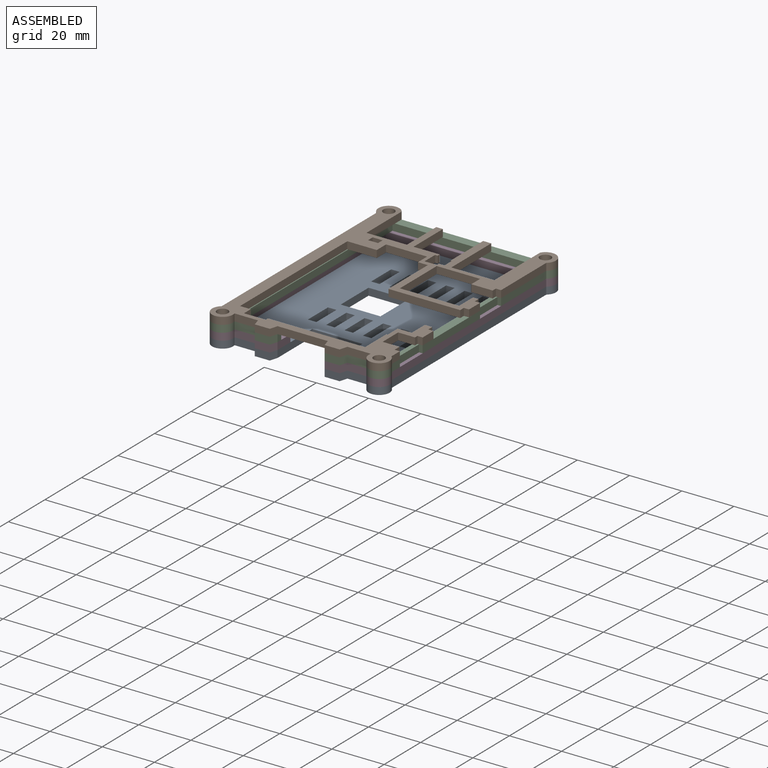
[diagram: assembled view]
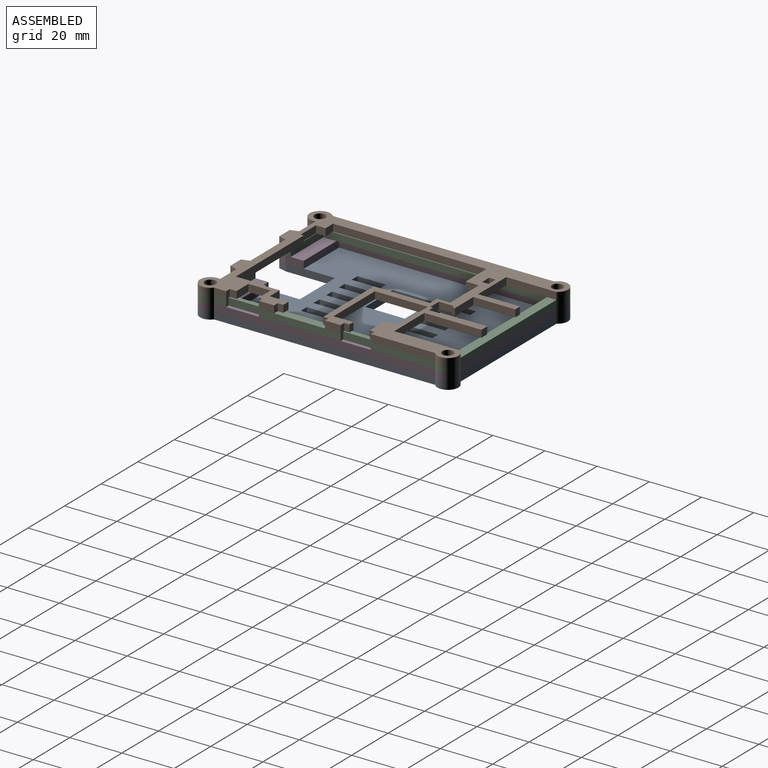
[diagram: assembled view, second angle]
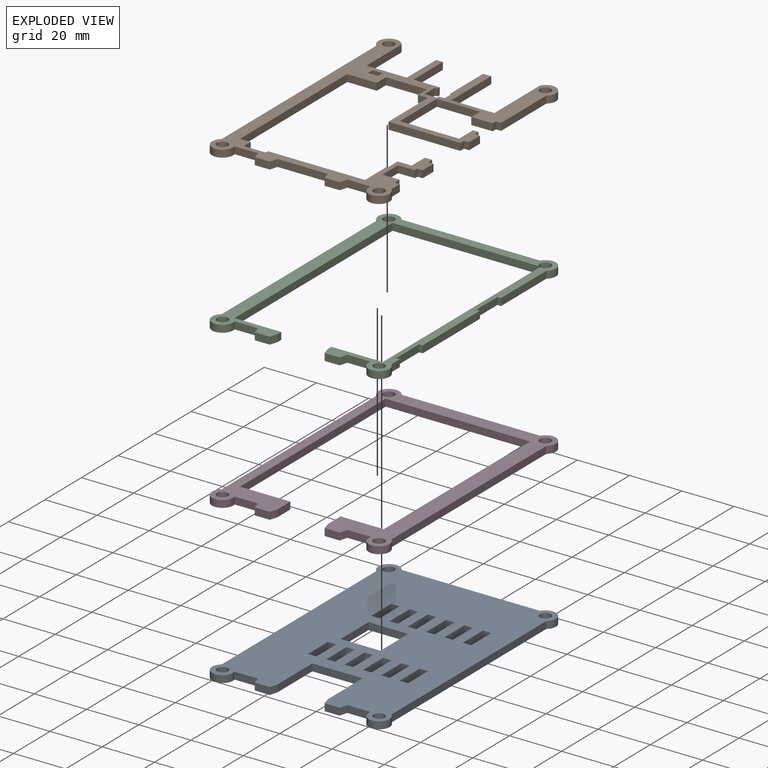
[diagram: exploded view]
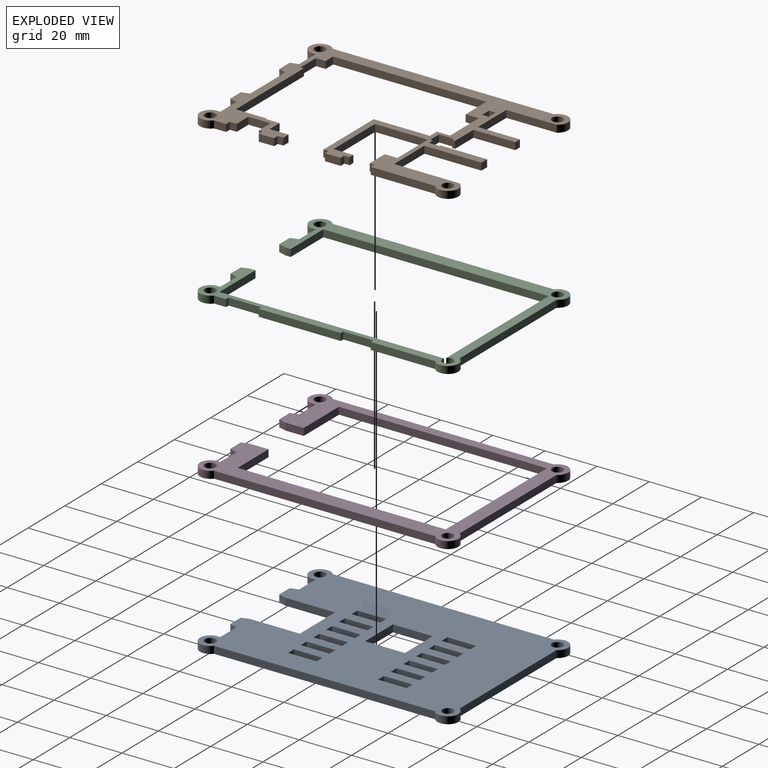
[diagram: exploded view, second angle]
ASSEMBLY  parts=4 mates=6
PART A: 76 faces, bbox 68x99x2.8 mm
  f0: plane 99x68mm, normal (0,0,1), area 5036.9mm2, adj f2,f3,f4,f5,f6,f7,f8,f9
  f1: plane 99x68mm, normal (0,0,-1), area 5036.9mm2, adj f2,f3,f4,f5,f6,f7,f8,f9
  f2: plane 53.07x2.75mm, normal (0,1,0), area 145.9mm2, adj f0,f1,f3,f20
  f3: cylinder r=4mm len=7.46mm, axis (0,0,-1), area 38.7mm2, adj f0,f1,f2,f4
  f4: plane 84.76x2.75mm, normal (-1,0,0), area 233.1mm2, adj f0,f1,f3,f5
  f5: cylinder r=4mm len=8mm, axis (0,0,-1), area 47.2mm2, adj f0,f1,f4,f6
  f6: plane 9x2.75mm, normal (0,-1,0), area 24.8mm2, adj f0,f1,f5,f7
  f7: plane 3x2.75mm, normal (-0.96,-0.28,0), area 8.6mm2, adj f0,f1,f6,f8
  f8: plane 5.75x2.75mm, normal (0,-1,0), area 15.8mm2, adj f0,f1,f7,f9
  f9: plane 3x2.75mm, normal (0.96,-0.28,0), area 8.6mm2, adj f0,f1,f8,f73
  f10: plane 3x2.75mm, normal (-0.96,-0.28,0), area 8.6mm2, adj f0,f1,f11,f74
  f11: plane 5.75x2.75mm, normal (0,-1,0), area 15.8mm2, adj f0,f1,f10,f12
  f12: plane 3x2.75mm, normal (0.96,-0.28,0), area 8.6mm2, adj f0,f1,f11,f13
  f13: plane 9x2.75mm, normal (0,-1,0), area 24.8mm2, adj f0,f1,f12,f14
  f14: cylinder r=4mm len=8mm, axis (0,0,-1), area 47.2mm2, adj f0,f1,f13,f15
  f15: plane 84.76x2.75mm, normal (1,0,0), area 233.1mm2, adj f0,f1,f14,f20
  f16: cylinder r=2.12mm len=4.25mm, axis (0,0,-1), area 36.7mm2, adj f0,f1
  f17: cylinder r=2.12mm len=4.25mm, axis (0,0,-1), area 36.7mm2, adj f0,f1
  f18: cylinder r=2.12mm len=4.25mm, axis (0,0,-1), area 36.7mm2, adj f0,f1
  f19: cylinder r=2.12mm len=4.25mm, axis (0,0,-1), area 36.7mm2, adj f0,f1
  f20: cylinder r=4mm len=7.46mm, axis (0,0,-1), area 38.7mm2, adj f0,f1,f2,f15
  f21: plane 11x2.75mm, normal (-1,0,0), area 30.2mm2, adj f0,f1,f22,f24
  f22: plane 3.25x2.75mm, normal (0,-1,0), area 8.9mm2, adj f0,f1,f21,f23
  f23: plane 11x2.75mm, normal (1,0,0), area 30.2mm2, adj f0,f1,f22,f24
  f24: plane 3.25x2.75mm, normal (0,1,0), area 8.9mm2, adj f0,f1,f21,f23
  f25: plane 11x2.75mm, normal (-1,0,0), area 30.2mm2, adj f0,f1,f26,f28
  f26: plane 3.25x2.75mm, normal (0,-1,0), area 8.9mm2, adj f0,f1,f25,f27
  f27: plane 11x2.75mm, normal (1,0,0), area 30.2mm2, adj f0,f1,f26,f28
  f28: plane 3.25x2.75mm, normal (0,1,0), area 8.9mm2, adj f0,f1,f25,f27
  f29: plane 11x2.75mm, normal (-1,0,0), area 30.2mm2, adj f0,f1,f30,f32
  f30: plane 3.25x2.75mm, normal (0,-1,0), area 8.9mm2, adj f0,f1,f29,f31
  f31: plane 11x2.75mm, normal (1,0,0), area 30.2mm2, adj f0,f1,f30,f32
  f32: plane 3.25x2.75mm, normal (0,1,0), area 8.9mm2, adj f0,f1,f29,f31
  f33: plane 11x2.75mm, normal (-1,0,0), area 30.2mm2, adj f0,f1,f34,f36
  f34: plane 3.25x2.75mm, normal (0,-1,0), area 8.9mm2, adj f0,f1,f33,f35
  f35: plane 11x2.75mm, normal (1,0,0), area 30.2mm2, adj f0,f1,f34,f36
  f36: plane 3.25x2.75mm, normal (0,1,0), area 8.9mm2, adj f0,f1,f33,f35
  f37: plane 15.25x2.75mm, normal (1,0,0), area 41.9mm2, adj f0,f1,f38,f39
  f38: plane 15.25x2.75mm, normal (0,-1,0), area 41.9mm2, adj f0,f1,f37,f40
  f39: plane 15.25x2.75mm, normal (0,1,0), area 41.9mm2, adj f0,f1,f37,f40
  f40: plane 15.25x2.75mm, normal (-1,0,0), area 41.9mm2, adj f0,f1,f38,f39
  f41: plane 11x2.75mm, normal (1,0,0), area 30.2mm2, adj f0,f1,f42,f43
  f42: plane 3.25x2.75mm, normal (0,-1,0), area 8.9mm2, adj f0,f1,f41,f44
  f43: plane 3.25x2.75mm, normal (0,1,0), area 8.9mm2, adj f0,f1,f41,f44
  f44: plane 11x2.75mm, normal (-1,0,0), area 30.2mm2, adj f0,f1,f42,f43
  f45: plane 11x2.75mm, normal (-1,0,0), area 30.2mm2, adj f0,f1,f46,f48
  f46: plane 3.25x2.75mm, normal (0,-1,0), area 8.9mm2, adj f0,f1,f45,f47
  f47: plane 11x2.75mm, normal (1,0,0), area 30.2mm2, adj f0,f1,f46,f48
  f48: plane 3.25x2.75mm, normal (0,1,0), area 8.9mm2, adj f0,f1,f45,f47
  f49: plane 11x2.75mm, normal (-1,0,0), area 30.2mm2, adj f0,f1,f50,f52
  f50: plane 3.25x2.75mm, normal (0,-1,0), area 8.9mm2, adj f0,f1,f49,f51
  f51: plane 11x2.75mm, normal (1,0,0), area 30.2mm2, adj f0,f1,f50,f52
  f52: plane 3.25x2.75mm, normal (0,1,0), area 8.9mm2, adj f0,f1,f49,f51
  f53: plane 11x2.75mm, normal (-1,0,0), area 30.2mm2, adj f0,f1,f54,f56
  f54: plane 3.25x2.75mm, normal (0,-1,0), area 8.9mm2, adj f0,f1,f53,f55
  f55: plane 11x2.75mm, normal (1,0,0), area 30.2mm2, adj f0,f1,f54,f56
  f56: plane 3.25x2.75mm, normal (0,1,0), area 8.9mm2, adj f0,f1,f53,f55
  f57: plane 11x2.75mm, normal (-1,0,0), area 30.2mm2, adj f0,f1,f58,f60
  f58: plane 3.25x2.75mm, normal (0,-1,0), area 8.9mm2, adj f0,f1,f57,f59
  f59: plane 11x2.75mm, normal (1,0,0), area 30.2mm2, adj f0,f1,f58,f60
  f60: plane 3.25x2.75mm, normal (0,1,0), area 8.9mm2, adj f0,f1,f57,f59
  f61: plane 11x2.75mm, normal (-1,0,0), area 30.2mm2, adj f0,f1,f62,f64
  f62: plane 3.25x2.75mm, normal (0,-1,0), area 8.9mm2, adj f0,f1,f61,f63
  f63: plane 11x2.75mm, normal (1,0,0), area 30.2mm2, adj f0,f1,f62,f64
  f64: plane 3.25x2.75mm, normal (0,1,0), area 8.9mm2, adj f0,f1,f61,f63
  f65: plane 11x2.75mm, normal (-1,0,0), area 30.2mm2, adj f0,f1,f66,f68
  f66: plane 3.25x2.75mm, normal (0,-1,0), area 8.9mm2, adj f0,f1,f65,f67
  f67: plane 11x2.75mm, normal (1,0,0), area 30.2mm2, adj f0,f1,f66,f68
  f68: plane 3.25x2.75mm, normal (0,1,0), area 8.9mm2, adj f0,f1,f65,f67
  f69: plane 11x2.75mm, normal (-1,0,0), area 30.2mm2, adj f0,f1,f70,f72
  f70: plane 3.25x2.75mm, normal (0,-1,0), area 8.9mm2, adj f0,f1,f69,f71
  f71: plane 11x2.75mm, normal (1,0,0), area 30.2mm2, adj f0,f1,f70,f72
  f72: plane 3.25x2.75mm, normal (0,1,0), area 8.9mm2, adj f0,f1,f69,f71
  f73: plane 19x2.75mm, normal (1,0,0), area 52.2mm2, adj f0,f1,f9,f75
  f74: plane 19x2.75mm, normal (-1,0,0), area 52.2mm2, adj f0,f1,f10,f75
  f75: plane 19.25x2.75mm, normal (0,-1,0), area 52.9mm2, adj f0,f1,f73,f74
PART B: 88 faces, bbox 68x99x2.8 mm
  f0: plane 5.9x2.75mm, normal (1,0,0), area 16.2mm2, adj f3,f4,f58,f85
  f1: plane 4.63x2.75mm, normal (1,0,0), area 12.7mm2, adj f3,f4,f17,f64
  f2: plane 6x2.75mm, normal (1,0,0), area 16.5mm2, adj f3,f4,f34,f65
  f3: plane 99x68mm, normal (0,0,1), area 1509.3mm2, adj f0,f1,f2,f5,f6,f7,f8,f9
  f4: plane 99x68mm, normal (0,0,-1), area 1509.3mm2, adj f0,f1,f2,f5,f6,f7,f8,f9
  f5: cylinder r=4mm len=7.46mm, axis (0,0,-1), area 38.7mm2, adj f3,f4,f6,f39
  f6: plane 84.76x2.75mm, normal (-1,0,0), area 233.1mm2, adj f3,f4,f5,f7
  f7: cylinder r=4mm len=8mm, axis (0,0,-1), area 47.2mm2, adj f3,f4,f6,f8
  f8: plane 9x2.75mm, normal (0,-1,0), area 24.8mm2, adj f3,f4,f7,f9
  f9: plane 3x2.75mm, normal (-0.96,-0.28,0), area 8.6mm2, adj f3,f4,f8,f10
  f10: plane 5.75x2.75mm, normal (0,-1,0), area 15.8mm2, adj f3,f4,f9,f11
  f11: plane 3x2.75mm, normal (0.96,-0.28,0), area 8.6mm2, adj f3,f4,f10,f12
  f12: plane 19.25x2.75mm, normal (0,-1,0), area 52.9mm2, adj f3,f4,f11,f13
  f13: plane 3x2.75mm, normal (-0.96,-0.28,0), area 8.6mm2, adj f3,f4,f12,f14
  f14: plane 5.75x2.75mm, normal (0,-1,0), area 15.8mm2, adj f3,f4,f13,f15
  f15: plane 3x2.75mm, normal (0.96,-0.28,0), area 8.6mm2, adj f3,f4,f14,f16
  f16: plane 9x2.75mm, normal (0,-1,0), area 24.8mm2, adj f3,f4,f15,f17
  f17: cylinder r=4mm len=8mm, axis (0,0,-1), area 47.2mm2, adj f1,f3,f4,f16
  f18: plane 24.73x2.75mm, normal (1,0,0), area 68mm2, adj f3,f4,f23,f24
  f19: cylinder r=2.12mm len=4.25mm, axis (0,0,-1), area 36.7mm2, adj f3,f4
  f20: cylinder r=2.12mm len=4.25mm, axis (0,0,-1), area 36.7mm2, adj f3,f4
  f21: cylinder r=2.12mm len=4.25mm, axis (0,0,-1), area 36.7mm2, adj f3,f4
  f22: cylinder r=2.12mm len=4.25mm, axis (0,0,-1), area 36.7mm2, adj f3,f4
  f23: cylinder r=4mm len=7.46mm, axis (0,0,-1), area 38.7mm2, adj f3,f4,f18,f57
  f24: plane 2.75x2mm, normal (0,-1,0), area 5.5mm2, adj f3,f4,f18,f25
  f25: plane 2.75x1.75mm, normal (1,0,0), area 4.8mm2, adj f3,f4,f24,f26
  f26: plane 8.2x2.75mm, normal (0,-1,0), area 22.5mm2, adj f3,f4,f25,f27
  f27: plane 4.85x2.75mm, normal (-1,0,0), area 13.3mm2, adj f3,f4,f26,f28
  f28: plane 16.6x2.75mm, normal (0,-1,0), area 45.6mm2, adj f3,f4,f27,f29
  f29: plane 20.2x2.75mm, normal (1,0,0), area 55.5mm2, adj f3,f4,f28,f30
  f30: plane 22.7x2.75mm, normal (0,1,0), area 62.4mm2, adj f3,f4,f29,f31
  f31: plane 7.6x2.75mm, normal (-1,0,0), area 20.9mm2, adj f3,f4,f30,f32
  f32: plane 2.75x2.1mm, normal (0,1,0), area 5.8mm2, adj f3,f4,f31,f33
  f33: plane 2.75x2mm, normal (1,0,0), area 5.5mm2, adj f3,f4,f32,f34
  f34: plane 2.75x2mm, normal (0,1,0), area 5.5mm2, adj f2,f3,f4,f33
  f35: plane 2.75x2.5mm, normal (1,0,0), area 6.9mm2, adj f3,f4,f36,f37
  f36: plane 3.8x2.75mm, normal (0,-1,0), area 10.5mm2, adj f3,f4,f35,f38
  f37: plane 3.8x2.75mm, normal (0,1,0), area 10.5mm2, adj f3,f4,f35,f38
  f38: plane 2.75x2.5mm, normal (-1,0,0), area 6.9mm2, adj f3,f4,f36,f37
  f39: plane 19.2x2.75mm, normal (1,0,0), area 52.8mm2, adj f3,f4,f5,f40
  f40: plane 15.5x2.75mm, normal (0,1,0), area 42.6mm2, adj f3,f4,f39,f41
  f41: plane 16.05x2.75mm, normal (-1,0,0), area 44.1mm2, adj f3,f4,f40,f42
  f42: plane 2.75x2.55mm, normal (0,1,0), area 7mm2, adj f3,f4,f41,f43
  f43: plane 16.05x2.75mm, normal (1,0,0), area 44.1mm2, adj f3,f4,f42,f44
  f44: plane 10.02x2.75mm, normal (0,1,0), area 27.6mm2, adj f3,f4,f43,f45
  f45: plane 2.75x1.1mm, normal (1,0,0), area 3mm2, adj f3,f4,f44,f46
  f46: plane 2.75x1mm, normal (0,-1,0), area 2.7mm2, adj f3,f4,f45,f47
  f47: plane 5.75x2.75mm, normal (1,0,0), area 15.8mm2, adj f3,f4,f46,f48
  f48: plane 4.75x2.75mm, normal (0,1,0), area 13.1mm2, adj f3,f4,f47,f49
  f49: plane 2.75x1.05mm, normal (-1,0,0), area 2.9mm2, adj f3,f4,f48,f50
  f50: plane 2.75x2.15mm, normal (0,1,0), area 5.9mm2, adj f3,f4,f49,f51
  f51: plane 4x2.75mm, normal (-1,0,0), area 11mm2, adj f3,f4,f50,f52
  f52: plane 2.75x0.5mm, normal (0,-1,0), area 1.4mm2, adj f3,f4,f51,f53
  f53: plane 17.85x2.75mm, normal (-1,0,0), area 49.1mm2, adj f3,f4,f52,f54
  f54: plane 3.1x2.75mm, normal (0,1,0), area 8.5mm2, adj f3,f4,f53,f55
  f55: plane 21.85x2.75mm, normal (1,0,0), area 60.1mm2, adj f3,f4,f54,f56
  f56: plane 16.5x2.75mm, normal (0,1,0), area 45.4mm2, adj f3,f4,f55,f57
  f57: plane 25x2.75mm, normal (-1,0,0), area 68.7mm2, adj f3,f4,f23,f56
  f58: plane 2.75x2mm, normal (0,-1,0), area 5.5mm2, adj f0,f3,f4,f59
  f59: plane 2.75x1.35mm, normal (1,0,0), area 3.7mm2, adj f3,f4,f58,f60
  f60: plane 6.45x2.75mm, normal (0,-1,0), area 17.7mm2, adj f3,f4,f59,f61
  f61: plane 8.5x2.75mm, normal (1,0,0), area 23.4mm2, adj f3,f4,f60,f62
  f62: plane 6.45x2.75mm, normal (0,1,0), area 17.7mm2, adj f3,f4,f61,f63
  f63: plane 2.75x2.65mm, normal (1,0,0), area 7.3mm2, adj f3,f4,f62,f64
  f64: plane 2.75x2mm, normal (0,1,0), area 5.5mm2, adj f1,f3,f4,f63
  f65: plane 2.75x2mm, normal (0,-1,0), area 5.5mm2, adj f2,f3,f4,f66
  f66: plane 2.75x2mm, normal (1,0,0), area 5.5mm2, adj f3,f4,f65,f67
  f67: plane 27.5x2.75mm, normal (0,-1,0), area 75.6mm2, adj f3,f4,f66,f68
  f68: plane 21.55x2.75mm, normal (-1,0,0), area 59.3mm2, adj f3,f4,f67,f69
  f69: plane 3.81x2.75mm, normal (0,-1,0), area 10.5mm2, adj f3,f4,f68,f70
  f70: plane 5.05x2.75mm, normal (-1,0,0), area 13.9mm2, adj f3,f4,f69,f71
  f71: plane 15.74x2.75mm, normal (0,-1,0), area 43.3mm2, adj f3,f4,f70,f72
  f72: plane 5.05x2.75mm, normal (1,0,0), area 13.9mm2, adj f3,f4,f71,f73
  f73: plane 11.3x2.75mm, normal (0,-1,0), area 31.1mm2, adj f3,f4,f72,f74
  f74: plane 58.7x2.75mm, normal (1,0,0), area 161.4mm2, adj f3,f4,f73,f75
  f75: plane 4.1x2.75mm, normal (0,1,0), area 11.3mm2, adj f3,f4,f74,f76
  f76: plane 3.7x2.75mm, normal (1,0,0), area 10.2mm2, adj f3,f4,f75,f77
  f77: plane 8.35x2.75mm, normal (0,1,0), area 23mm2, adj f3,f4,f76,f78
  f78: plane 2.75x1.2mm, normal (-1,0,0), area 3.3mm2, adj f3,f4,f77,f79
  f79: plane 37.2x2.75mm, normal (0,1,0), area 102.3mm2, adj f3,f4,f78,f80
  f80: plane 11.62x2.75mm, normal (-1,0,0), area 32mm2, adj f3,f4,f79,f81
  f81: plane 2.75x0.5mm, normal (0,1,0), area 1.4mm2, adj f3,f4,f80,f82
  f82: plane 5.5x2.75mm, normal (-1,0,0), area 15.1mm2, adj f3,f4,f81,f83
  f83: plane 5.4x2.75mm, normal (0,1,0), area 14.8mm2, adj f3,f4,f82,f84
  f84: plane 7.18x2.75mm, normal (-1,0,0), area 19.7mm2, adj f3,f4,f83,f86
  f85: plane 2.75x2mm, normal (0,1,0), area 5.5mm2, adj f0,f3,f4,f87
  f86: plane 2.8x2.75mm, normal (0,1,0), area 7.7mm2, adj f3,f4,f84,f87
  f87: plane 2.75x2.15mm, normal (1,0,0), area 5.9mm2, adj f3,f4,f85,f86
PART C: 36 faces, bbox 68x99x2.8 mm
  f0: plane 4.63x2.75mm, normal (1,0,0), area 12.7mm2, adj f2,f3,f16,f28
  f1: plane 31.4x2.75mm, normal (1,0,0), area 86.3mm2, adj f2,f3,f25,f26
  f2: plane 99x68mm, normal (0,0,1), area 1084.7mm2, adj f0,f1,f4,f5,f6,f7,f8,f9
  f3: plane 99x68mm, normal (0,0,-1), area 1084.7mm2, adj f0,f1,f4,f5,f6,f7,f8,f9
  f4: plane 53.07x2.75mm, normal (0,1,0), area 145.9mm2, adj f2,f3,f5,f22
  f5: cylinder r=4mm len=7.46mm, axis (0,0,-1), area 38.7mm2, adj f2,f3,f4,f6
  f6: plane 84.76x2.75mm, normal (-1,0,0), area 233.1mm2, adj f2,f3,f5,f7
  f7: cylinder r=4mm len=8mm, axis (0,0,-1), area 47.2mm2, adj f2,f3,f6,f8
  f8: plane 9x2.75mm, normal (0,-1,0), area 24.8mm2, adj f2,f3,f7,f9
  f9: plane 3x2.75mm, normal (-0.96,-0.28,0), area 8.6mm2, adj f2,f3,f8,f10
  f10: plane 5.75x2.75mm, normal (0,-1,0), area 15.8mm2, adj f2,f3,f9,f11
  f11: plane 3x2.75mm, normal (0.96,-0.28,0), area 8.6mm2, adj f2,f3,f10,f31
  f12: plane 3x2.75mm, normal (-0.96,-0.28,0), area 8.6mm2, adj f2,f3,f13,f33
  f13: plane 5.75x2.75mm, normal (0,-1,0), area 15.8mm2, adj f2,f3,f12,f14
  f14: plane 3x2.75mm, normal (0.96,-0.28,0), area 8.6mm2, adj f2,f3,f13,f15
  f15: plane 9x2.75mm, normal (0,-1,0), area 24.8mm2, adj f2,f3,f14,f16
  f16: cylinder r=4mm len=8mm, axis (0,0,-1), area 47.2mm2, adj f0,f2,f3,f15
  f17: plane 24.73x2.75mm, normal (1,0,0), area 68mm2, adj f2,f3,f22,f23
  f18: cylinder r=2.12mm len=4.25mm, axis (0,0,-1), area 36.7mm2, adj f2,f3
  f19: cylinder r=2.12mm len=4.25mm, axis (0,0,-1), area 34.5mm2, adj f2,f3,f32,f35
  f20: cylinder r=2.12mm len=4.25mm, axis (0,0,-1), area 36.7mm2, adj f2,f3
  f21: cylinder r=2.12mm len=4.25mm, axis (0,0,-1), area 36.7mm2, adj f2,f3
  f22: cylinder r=4mm len=7.46mm, axis (0,0,-1), area 38.7mm2, adj f2,f3,f4,f17
  f23: plane 2.75x1.4mm, normal (0,-1,0), area 3.9mm2, adj f2,f3,f17,f24
  f24: plane 11.5x2.75mm, normal (1,0,0), area 31.6mm2, adj f2,f3,f23,f25
  f25: plane 2.75x1.4mm, normal (0,1,0), area 3.9mm2, adj f1,f2,f3,f24
  f26: plane 2.75x1.4mm, normal (0,-1,0), area 3.9mm2, adj f1,f2,f3,f27
  f27: plane 12.5x2.75mm, normal (1,0,0), area 34.4mm2, adj f2,f3,f26,f28
  f28: plane 2.75x1.4mm, normal (0,1,0), area 3.9mm2, adj f0,f2,f3,f27
  f29: plane 17.88x2.75mm, normal (0,1,0), area 49.2mm2, adj f2,f3,f30,f31
  f30: plane 86.4x2.75mm, normal (1,0,0), area 237.6mm2, adj f2,f3,f29,f32
  f31: plane 2.75x2mm, normal (1,0,0), area 5.5mm2, adj f2,f3,f11,f29
  f32: plane 56.1x2.75mm, normal (0,-1,0), area 154.3mm2, adj f2,f3,f19,f30
  f33: plane 2.75x2mm, normal (-1,0,0), area 5.5mm2, adj f2,f3,f12,f34
  f34: plane 19.68x2.75mm, normal (0,1,0), area 54.1mm2, adj f2,f3,f33,f35
  f35: plane 85.99x2.75mm, normal (-1,0,0), area 236.5mm2, adj f2,f3,f19,f34
PART D: 28 faces, bbox 68x99x2.8 mm
  f0: plane 99x68mm, normal (0,0,1), area 1514.1mm2, adj f1,f2,f3,f4,f5,f6,f7,f8
  f1: plane 53.07x2.75mm, normal (0,1,0), area 145.9mm2, adj f0,f2,f19,f20
  f2: cylinder r=4mm len=7.46mm, axis (0,0,-1), area 38.7mm2, adj f0,f1,f3,f20
  f3: plane 84.76x2.75mm, normal (-1,0,0), area 233.1mm2, adj f0,f2,f4,f20
  f4: cylinder r=4mm len=8mm, axis (0,0,-1), area 47.2mm2, adj f0,f3,f5,f20
  f5: plane 9x2.75mm, normal (0,-1,0), area 24.8mm2, adj f0,f4,f6,f20
  f6: plane 3x2.75mm, normal (-0.96,-0.28,0), area 8.6mm2, adj f0,f5,f7,f20
  f7: plane 5.75x2.75mm, normal (0,-1,0), area 15.8mm2, adj f0,f6,f8,f20
  f8: plane 3x2.75mm, normal (0.96,-0.28,0), area 8.6mm2, adj f0,f7,f20,f26
  f9: plane 3x2.75mm, normal (-0.96,-0.28,0), area 8.6mm2, adj f0,f10,f20,f21
  f10: plane 5.75x2.75mm, normal (0,-1,0), area 15.8mm2, adj f0,f9,f11,f20
  f11: plane 3x2.75mm, normal (0.96,-0.28,0), area 8.6mm2, adj f0,f10,f12,f20
  f12: plane 9x2.75mm, normal (0,-1,0), area 24.8mm2, adj f0,f11,f13,f20
  f13: cylinder r=4mm len=8mm, axis (0,0,-1), area 47.2mm2, adj f0,f12,f14,f20
  f14: plane 84.76x2.75mm, normal (1,0,0), area 233.1mm2, adj f0,f13,f19,f20
  f15: cylinder r=2.12mm len=4.25mm, axis (0,0,-1), area 36.7mm2, adj f0,f20
  f16: cylinder r=2.12mm len=4.25mm, axis (0,0,-1), area 36.7mm2, adj f0,f20
  f17: cylinder r=2.12mm len=4.25mm, axis (0,0,-1), area 36.7mm2, adj f0,f20
  f18: cylinder r=2.12mm len=4.25mm, axis (0,0,-1), area 36.7mm2, adj f0,f20
  f19: cylinder r=4mm len=7.46mm, axis (0,0,-1), area 38.7mm2, adj f0,f1,f14,f20
  f20: plane 99x68mm, normal (0,0,-1), area 1514.1mm2, adj f1,f2,f3,f4,f5,f6,f7,f8
  f21: plane 7x2.75mm, normal (-1,0,0), area 19.2mm2, adj f0,f9,f20,f22
  f22: plane 16.88x2.75mm, normal (0,1,0), area 46.4mm2, adj f0,f20,f21,f23
  f23: plane 79.7x2.75mm, normal (-1,0,0), area 219.2mm2, adj f0,f20,f22,f24
  f24: plane 55.4x2.75mm, normal (0,-1,0), area 152.3mm2, adj f0,f20,f23,f25
  f25: plane 79.7x2.75mm, normal (1,0,0), area 219.2mm2, adj f0,f20,f24,f27
  f26: plane 7x2.75mm, normal (1,0,0), area 19.2mm2, adj f0,f8,f20,f27
  f27: plane 19.28x2.75mm, normal (0,1,0), area 53mm2, adj f0,f20,f25,f26
PLACE A t=(-26.26,7.52,4.51)mm
PLACE B t=(-26.26,7.52,12.76)mm
PLACE C t=(-26.26,7.52,10.01)mm
PLACE D t=(-26.26,7.52,7.26)mm
MATE cylindrical D.f13 <-> C.f16  axis (0,0,1) through (3.74,-39.48,10.01)mm
MATE cylindrical C.f16 <-> B.f17  axis (0,0,1) through (3.74,-39.48,12.76)mm
MATE planar C.f3 <-> D.f0  axis (0,0,-1) through (-12.89,-41.48,10.01)mm
MATE cylindrical A.f14 <-> D.f13  axis (0,0,-1) through (3.74,-39.48,7.26)mm
MATE planar A.f0 <-> D.f20  axis (0,0,1) through (-35.89,-38.48,7.26)mm
MATE planar C.f2 <-> B.f4  axis (0,0,1) through (-31.31,9.7,12.76)mm
